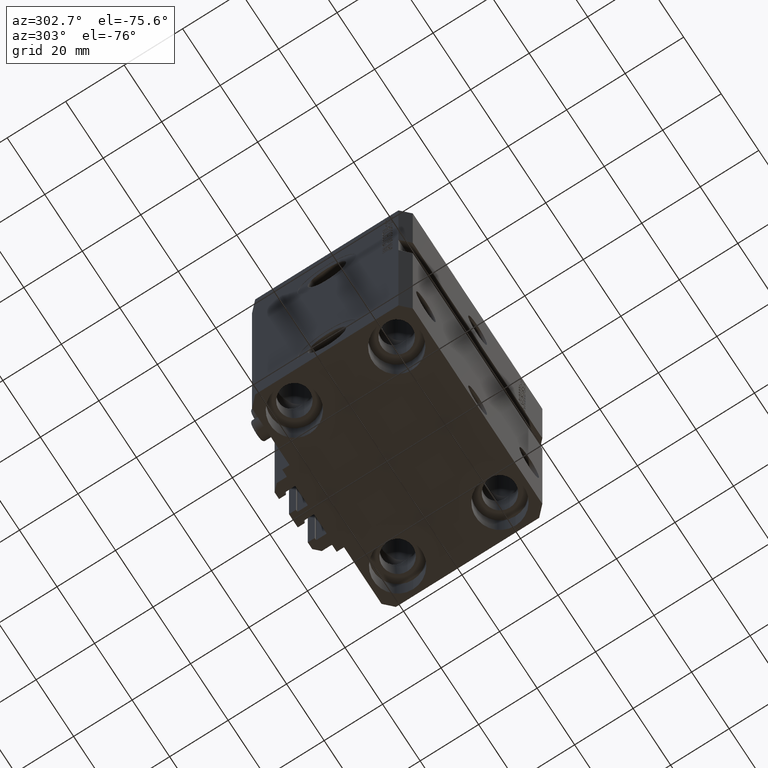
[diagram: clean part render]
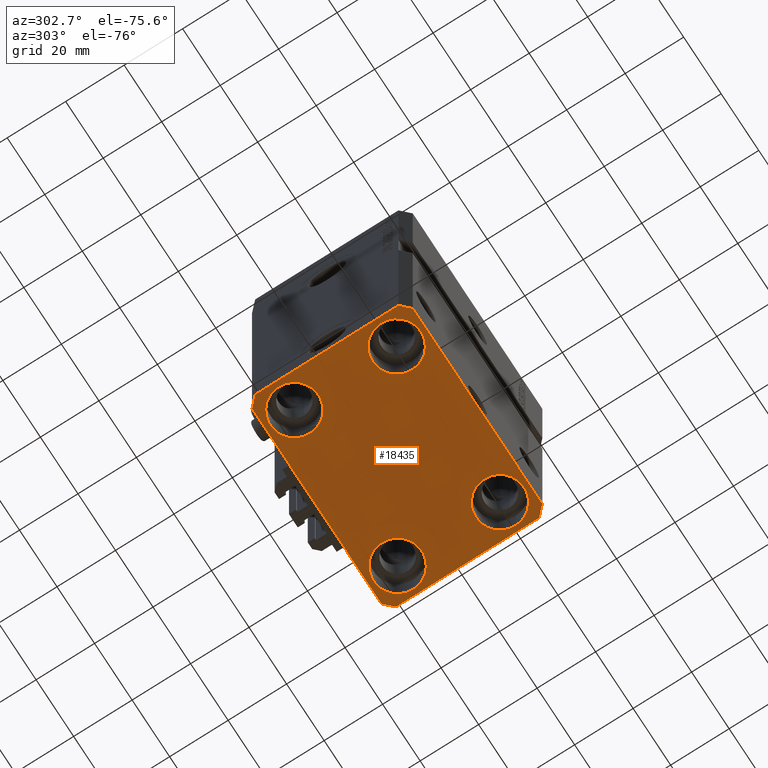
[diagram: same view with one face highlighted and labeled with its STEP entity id]
A machine part, auxiliary view. The second image highlights one B-rep face of the part: STEP entity #18435.
In plain terms, the highlighted planar face has unit normal (0, 0, 1).
Its self-contained STEP definition (entity closure, byte-faithful):
#175 = EDGE_CURVE ( 'NONE', #25819, #14379, #27196, .T. ) ;
#847 = DIRECTION ( 'NONE',  ( 1.000000000000000000, 0.000000000000000000, 0.000000000000000000 ) ) ;
#1198 = VERTEX_POINT ( 'NONE', #12014 ) ;
#1294 = FACE_BOUND ( 'NONE', #40071, .T. ) ;
#1436 = ORIENTED_EDGE ( 'NONE', *, *, #47967, .F. ) ;
#1446 = VERTEX_POINT ( 'NONE', #14744 ) ;
#1483 = AXIS2_PLACEMENT_3D ( 'NONE', #27573, #35425, #8559 ) ;
#1820 = LINE ( 'NONE', #12744, #17951 ) ;
#1878 = CIRCLE ( 'NONE', #30222, 8.249999999999992895 ) ;
#2508 = ORIENTED_EDGE ( 'NONE', *, *, #175, .F. ) ;
#2666 = CARTESIAN_POINT ( 'NONE',  ( -34.49999999999999289, 27.50000000000000000, -110.0000000000000000 ) ) ;
#2744 = DIRECTION ( 'NONE',  ( -0.000000000000000000, -0.000000000000000000, 1.000000000000000000 ) ) ;
#2851 = CARTESIAN_POINT ( 'NONE',  ( -27.50000000000000355, -17.50000000000000000, -110.0000000000000000 ) ) ;
#3228 = CARTESIAN_POINT ( 'NONE',  ( 34.50000000000056843, 27.50000000000000000, -110.0000000000000000 ) ) ;
#3421 = VECTOR ( 'NONE', #16973, 1000.000000000000000 ) ;
#4118 = EDGE_CURVE ( 'NONE', #36986, #30580, #20926, .T. ) ;
#4411 = DIRECTION ( 'NONE',  ( -0.7071067811865356934, 0.7071067811865594521, 0.000000000000000000 ) ) ;
#5094 = EDGE_CURVE ( 'NONE', #20532, #22032, #8386, .T. ) ;
#5188 = ORIENTED_EDGE ( 'NONE', *, *, #18058, .T. ) ;
#5293 = LINE ( 'NONE', #32179, #3421 ) ;
#5938 = VERTEX_POINT ( 'NONE', #3228 ) ;
#6292 = VECTOR ( 'NONE', #38608, 1000.000000000000000 ) ;
#6417 = EDGE_CURVE ( 'NONE', #1198, #5938, #16093, .T. ) ;
#6440 = VERTEX_POINT ( 'NONE', #48051 ) ;
#6473 = LINE ( 'NONE', #2666, #14739 ) ;
#6665 = DIRECTION ( 'NONE',  ( -0.000000000000000000, -0.000000000000000000, 1.000000000000000000 ) ) ;
#6940 = DIRECTION ( 'NONE',  ( 1.000000000000000000, 0.000000000000000000, 0.000000000000000000 ) ) ;
#8199 = EDGE_LOOP ( 'NONE', ( #5188, #38490 ) ) ;
#8386 = LINE ( 'NONE', #30719, #10440 ) ;
#8559 = DIRECTION ( 'NONE',  ( 1.000000000000000000, 0.000000000000000000, 0.000000000000000000 ) ) ;
#8853 = DIRECTION ( 'NONE',  ( -0.000000000000000000, -0.000000000000000000, 1.000000000000000000 ) ) ;
#8929 = FACE_BOUND ( 'NONE', #8199, .T. ) ;
#9488 = CIRCLE ( 'NONE', #37798, 8.250000000000000000 ) ;
#9652 = ORIENTED_EDGE ( 'NONE', *, *, #30306, .T. ) ;
#10440 = VECTOR ( 'NONE', #35007, 1000.000000000000114 ) ;
#10923 = ORIENTED_EDGE ( 'NONE', *, *, #15886, .T. ) ;
#11022 = DIRECTION ( 'NONE',  ( -0.000000000000000000, -0.000000000000000000, 1.000000000000000000 ) ) ;
#12014 = CARTESIAN_POINT ( 'NONE',  ( 37.50000000000051870, 24.49999999999995381, -110.0000000000000000 ) ) ;
#12486 = FACE_BOUND ( 'NONE', #48169, .T. ) ;
#12744 = CARTESIAN_POINT ( 'NONE',  ( 37.49999999999999289, -24.50000000000000000, -110.0000000000000000 ) ) ;
#12745 = EDGE_CURVE ( 'NONE', #29637, #17008, #17201, .T. ) ;
#13217 = EDGE_CURVE ( 'NONE', #5938, #44056, #5293, .T. ) ;
#14047 = LINE ( 'NONE', #37103, #43561 ) ;
#14379 = VERTEX_POINT ( 'NONE', #49778 ) ;
#14562 = LINE ( 'NONE', #41692, #47448 ) ;
#14739 = VECTOR ( 'NONE', #38169, 1000.000000000000000 ) ;
#14744 = CARTESIAN_POINT ( 'NONE',  ( -19.25000000000000355, 17.50000000000000000, -110.0000000000000000 ) ) ;
#15017 = VERTEX_POINT ( 'NONE', #41537 ) ;
#15038 = CARTESIAN_POINT ( 'NONE',  ( -37.49999999999999289, 24.50000000000000000, -110.0000000000000000 ) ) ;
#15770 = FACE_OUTER_BOUND ( 'NONE', #29092, .T. ) ;
#15886 = EDGE_CURVE ( 'NONE', #27545, #44792, #33363, .T. ) ;
#16093 = LINE ( 'NONE', #39177, #38799 ) ;
#16821 = AXIS2_PLACEMENT_3D ( 'NONE', #34635, #18672, #49625 ) ;
#16864 = CARTESIAN_POINT ( 'NONE',  ( 35.75000000000000711, -17.50000000000000000, -110.0000000000000000 ) ) ;
#16973 = DIRECTION ( 'NONE',  ( -1.000000000000000000, 0.000000000000000000, 0.000000000000000000 ) ) ;
#17008 = VERTEX_POINT ( 'NONE', #39494 ) ;
#17201 = CIRCLE ( 'NONE', #41481, 8.250000000000000000 ) ;
#17208 = DIRECTION ( 'NONE',  ( 1.000000000000000000, 0.000000000000000000, 0.000000000000000000 ) ) ;
#17280 = CARTESIAN_POINT ( 'NONE',  ( -34.49999999999999289, 27.50000000000000000, -110.0000000000000000 ) ) ;
#17291 = DIRECTION ( 'NONE',  ( 1.076236605503979380E-14, 1.000000000000000000, 0.000000000000000000 ) ) ;
#17951 = VECTOR ( 'NONE', #17291, 1000.000000000000000 ) ;
#17965 = DIRECTION ( 'NONE',  ( 1.000000000000000000, 0.000000000000000000, 0.000000000000000000 ) ) ;
#18058 = EDGE_CURVE ( 'NONE', #30580, #36986, #1878, .T. ) ;
#18435 = ADVANCED_FACE ( 'NONE', ( #46711, #1294, #8929, #12486, #15770 ), #46965, .F. ) ;
#18480 = CARTESIAN_POINT ( 'NONE',  ( 34.49999999999999289, -27.49999999999999645, -110.0000000000000000 ) ) ;
#18672 = DIRECTION ( 'NONE',  ( -0.000000000000000000, -0.000000000000000000, 1.000000000000000000 ) ) ;
#19573 = CARTESIAN_POINT ( 'NONE',  ( 0.000000000000000000, 0.000000000000000000, -110.0000000000000000 ) ) ;
#20532 = VERTEX_POINT ( 'NONE', #18480 ) ;
#20874 = ORIENTED_EDGE ( 'NONE', *, *, #48480, .F. ) ;
#20926 = CIRCLE ( 'NONE', #1483, 8.249999999999992895 ) ;
#21661 = ORIENTED_EDGE ( 'NONE', *, *, #12745, .T. ) ;
#22032 = VERTEX_POINT ( 'NONE', #33232 ) ;
#22366 = CARTESIAN_POINT ( 'NONE',  ( -37.49999999999999289, 24.50000000000000000, -110.0000000000000000 ) ) ;
#23165 = ORIENTED_EDGE ( 'NONE', *, *, #36135, .F. ) ;
#23926 = DIRECTION ( 'NONE',  ( -0.000000000000000000, -0.000000000000000000, 1.000000000000000000 ) ) ;
#24341 = EDGE_CURVE ( 'NONE', #15017, #20532, #14562, .T. ) ;
#25567 = DIRECTION ( 'NONE',  ( -0.000000000000000000, -0.000000000000000000, 1.000000000000000000 ) ) ;
#25819 = VERTEX_POINT ( 'NONE', #22366 ) ;
#26686 = DIRECTION ( 'NONE',  ( 1.000000000000000000, 0.000000000000000000, 0.000000000000000000 ) ) ;
#26955 = AXIS2_PLACEMENT_3D ( 'NONE', #19573, #28440, #39599 ) ;
#27196 = LINE ( 'NONE', #15038, #6292 ) ;
#27545 = VERTEX_POINT ( 'NONE', #37722 ) ;
#27573 = CARTESIAN_POINT ( 'NONE',  ( 27.49999999999999645, 17.50000000000001066, -110.0000000000000000 ) ) ;
#28440 = DIRECTION ( 'NONE',  ( 0.000000000000000000, 0.000000000000000000, 1.000000000000000000 ) ) ;
#29092 = EDGE_LOOP ( 'NONE', ( #40857, #34086, #20874, #46652, #36304, #23165, #2508, #1436 ) ) ;
#29230 = AXIS2_PLACEMENT_3D ( 'NONE', #37883, #11022, #41449 ) ;
#29637 = VERTEX_POINT ( 'NONE', #31839 ) ;
#30192 = CIRCLE ( 'NONE', #49642, 8.250000000000000000 ) ;
#30222 = AXIS2_PLACEMENT_3D ( 'NONE', #43468, #23926, #847 ) ;
#30306 = EDGE_CURVE ( 'NONE', #44792, #27545, #9488, .T. ) ;
#30580 = VERTEX_POINT ( 'NONE', #42536 ) ;
#30719 = CARTESIAN_POINT ( 'NONE',  ( 34.49999999999999289, -27.49999999999999645, -110.0000000000000000 ) ) ;
#31839 = CARTESIAN_POINT ( 'NONE',  ( -19.25000000000000355, -17.50000000000000000, -110.0000000000000000 ) ) ;
#31999 = EDGE_CURVE ( 'NONE', #6440, #1446, #34502, .T. ) ;
#32179 = CARTESIAN_POINT ( 'NONE',  ( 34.50000000000056843, 27.50000000000000000, -110.0000000000000000 ) ) ;
#32664 = CARTESIAN_POINT ( 'NONE',  ( 35.74999999999999289, 17.50000000000001066, -110.0000000000000000 ) ) ;
#33232 = CARTESIAN_POINT ( 'NONE',  ( 37.49999999999999289, -24.50000000000000000, -110.0000000000000000 ) ) ;
#33363 = CIRCLE ( 'NONE', #47978, 8.250000000000000000 ) ;
#34086 = ORIENTED_EDGE ( 'NONE', *, *, #6417, .F. ) ;
#34502 = CIRCLE ( 'NONE', #16821, 8.250000000000000000 ) ;
#34635 = CARTESIAN_POINT ( 'NONE',  ( -27.50000000000000355, 17.50000000000000000, -110.0000000000000000 ) ) ;
#35007 = DIRECTION ( 'NONE',  ( 0.7071067811865474617, 0.7071067811865474617, 0.000000000000000000 ) ) ;
#35425 = DIRECTION ( 'NONE',  ( -0.000000000000000000, -0.000000000000000000, 1.000000000000000000 ) ) ;
#36135 = EDGE_CURVE ( 'NONE', #14379, #15017, #14047, .T. ) ;
#36304 = ORIENTED_EDGE ( 'NONE', *, *, #24341, .F. ) ;
#36986 = VERTEX_POINT ( 'NONE', #32664 ) ;
#37103 = CARTESIAN_POINT ( 'NONE',  ( -37.49999999999999289, -24.50000000000000000, -110.0000000000000000 ) ) ;
#37495 = CARTESIAN_POINT ( 'NONE',  ( -27.50000000000000355, 17.50000000000000000, -110.0000000000000000 ) ) ;
#37722 = CARTESIAN_POINT ( 'NONE',  ( 19.25000000000000000, -17.50000000000000000, -110.0000000000000000 ) ) ;
#37798 = AXIS2_PLACEMENT_3D ( 'NONE', #40277, #8853, #17208 ) ;
#37883 = CARTESIAN_POINT ( 'NONE',  ( -27.50000000000000355, -17.50000000000000000, -110.0000000000000000 ) ) ;
#38114 = CIRCLE ( 'NONE', #29230, 8.250000000000000000 ) ;
#38169 = DIRECTION ( 'NONE',  ( -0.7071067811865471286, -0.7071067811865479058, 0.000000000000000000 ) ) ;
#38276 = ORIENTED_EDGE ( 'NONE', *, *, #31999, .T. ) ;
#38490 = ORIENTED_EDGE ( 'NONE', *, *, #4118, .T. ) ;
#38608 = DIRECTION ( 'NONE',  ( 0.000000000000000000, -1.000000000000000000, 0.000000000000000000 ) ) ;
#38799 = VECTOR ( 'NONE', #4411, 1000.000000000000114 ) ;
#39076 = EDGE_LOOP ( 'NONE', ( #46229, #21661 ) ) ;
#39177 = CARTESIAN_POINT ( 'NONE',  ( 37.50000000000051870, 24.49999999999995381, -110.0000000000000000 ) ) ;
#39494 = CARTESIAN_POINT ( 'NONE',  ( -35.75000000000000711, -17.50000000000000000, -110.0000000000000000 ) ) ;
#39599 = DIRECTION ( 'NONE',  ( 1.000000000000000000, 0.000000000000000000, -0.000000000000000000 ) ) ;
#40071 = EDGE_LOOP ( 'NONE', ( #10923, #9652 ) ) ;
#40277 = CARTESIAN_POINT ( 'NONE',  ( 27.50000000000000355, -17.50000000000000000, -110.0000000000000000 ) ) ;
#40857 = ORIENTED_EDGE ( 'NONE', *, *, #13217, .F. ) ;
#41449 = DIRECTION ( 'NONE',  ( 1.000000000000000000, 0.000000000000000000, 0.000000000000000000 ) ) ;
#41481 = AXIS2_PLACEMENT_3D ( 'NONE', #2851, #6665, #26686 ) ;
#41537 = CARTESIAN_POINT ( 'NONE',  ( -34.49999999999998579, -27.49999999999999645, -110.0000000000000000 ) ) ;
#41692 = CARTESIAN_POINT ( 'NONE',  ( -34.49999999999998579, -27.49999999999999645, -110.0000000000000000 ) ) ;
#42536 = CARTESIAN_POINT ( 'NONE',  ( 19.25000000000000000, 17.50000000000001066, -110.0000000000000000 ) ) ;
#43468 = CARTESIAN_POINT ( 'NONE',  ( 27.49999999999999645, 17.50000000000001066, -110.0000000000000000 ) ) ;
#43561 = VECTOR ( 'NONE', #45455, 1000.000000000000000 ) ;
#44056 = VERTEX_POINT ( 'NONE', #17280 ) ;
#44792 = VERTEX_POINT ( 'NONE', #16864 ) ;
#45455 = DIRECTION ( 'NONE',  ( 0.7071067811865483499, -0.7071067811865466846, 0.000000000000000000 ) ) ;
#45487 = ORIENTED_EDGE ( 'NONE', *, *, #49942, .T. ) ;
#45764 = EDGE_CURVE ( 'NONE', #17008, #29637, #38114, .T. ) ;
#46229 = ORIENTED_EDGE ( 'NONE', *, *, #45764, .T. ) ;
#46652 = ORIENTED_EDGE ( 'NONE', *, *, #5094, .F. ) ;
#46711 = FACE_BOUND ( 'NONE', #39076, .T. ) ;
#46965 = PLANE ( 'NONE',  #26955 ) ;
#47448 = VECTOR ( 'NONE', #6940, 1000.000000000000000 ) ;
#47967 = EDGE_CURVE ( 'NONE', #44056, #25819, #6473, .T. ) ;
#47978 = AXIS2_PLACEMENT_3D ( 'NONE', #49412, #25567, #17965 ) ;
#48051 = CARTESIAN_POINT ( 'NONE',  ( -35.75000000000000711, 17.50000000000000000, -110.0000000000000000 ) ) ;
#48169 = EDGE_LOOP ( 'NONE', ( #38276, #45487 ) ) ;
#48480 = EDGE_CURVE ( 'NONE', #22032, #1198, #1820, .T. ) ;
#48928 = DIRECTION ( 'NONE',  ( 1.000000000000000000, 0.000000000000000000, 0.000000000000000000 ) ) ;
#49412 = CARTESIAN_POINT ( 'NONE',  ( 27.50000000000000355, -17.50000000000000000, -110.0000000000000000 ) ) ;
#49625 = DIRECTION ( 'NONE',  ( 1.000000000000000000, 0.000000000000000000, 0.000000000000000000 ) ) ;
#49642 = AXIS2_PLACEMENT_3D ( 'NONE', #37495, #2744, #48928 ) ;
#49778 = CARTESIAN_POINT ( 'NONE',  ( -37.49999999999999289, -24.50000000000000000, -110.0000000000000000 ) ) ;
#49942 = EDGE_CURVE ( 'NONE', #1446, #6440, #30192, .T. ) ;